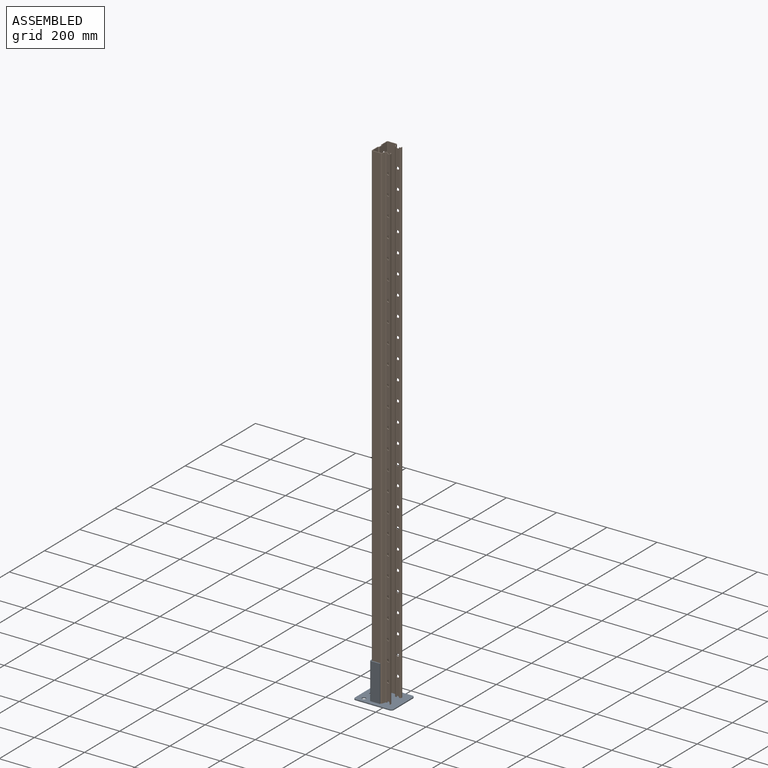
[diagram: assembled view]
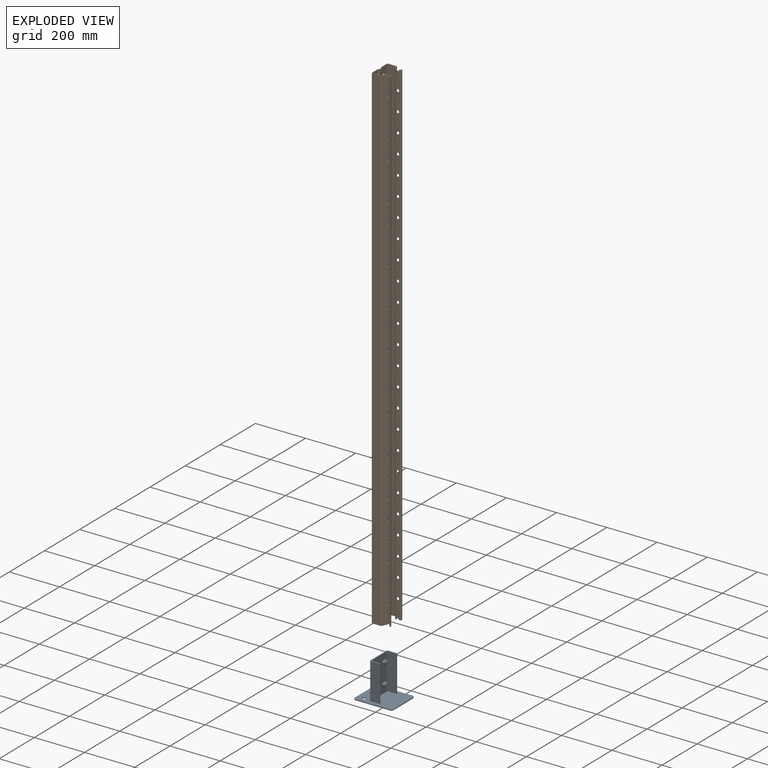
[diagram: exploded view]
GUIDED TOUR — MATED ASSEMBLY WITH SUBASSEMBLIES (Onshape document 2a5d881f6d98ae040764b046, AutoMate assembly 2a5d881f6d98ae040764b046_ed4b050bca129a478b0a3f3c_4f084a7fbbb51c69a40d41c6_default)

This assembly has 10 component occurrences arranged in 2 top-level units: 1 individual components plus 1 subassembly (S0). The tour has two levels: first the top level, where each subassembly is treated as one rigid unit; then each subassembly is toured internally in its own section (nesting deeper than one subassembly level is flattened into its subassembly's section).

Components are labeled P0..P9 across the whole record; subassembly units are labeled S0..S0. A mate is a constraint between two units; its type names the relative motion it leaves free:
  FASTENED — locks the two components together rigidly (no relative motion),
  REVOLUTE — leaves rotation about the listed axis free (a hinge).
Axis/direction vectors are unit vectors and 'through' points are millimeter coordinates, both in the assembly's world frame.

TOP-LEVEL MATES (between units; each subassembly's internal mates are listed in its own section)
  1. FASTENED "Fastened 1": P1 <-> S0, direction (0.000, 0.000, -1.000) through (584.40, -951.72, -2016.73) mm

TOP-LEVEL ASSEMBLY ORDER
  1. S0 — the base component [order verified]
  2. P1 [order verified]
Order-tag legend:
  [order verified] — this step's position reverses a verified removal order: the component was checked to insert without passing through the ones already placed.

Of the 10 component occurrences, 4 carry the full construction recipe — the FeatureScript program that regenerates the part's solid from scratch; the rest are supplied as boundary geometry only. Each toured unit is shown spotlighted twice — assembled, then exploded with a leader line back to its socket (green = recipe-attached component, orange = geometry-only, blue = subassembly unit; the rest desaturated gray).
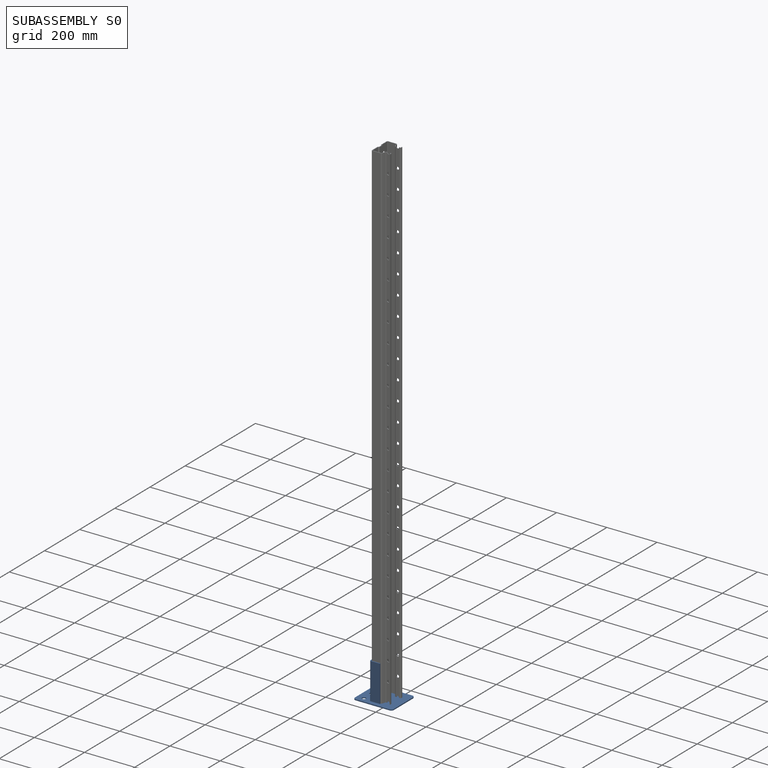
[diagram: subassembly S0 — assembled]
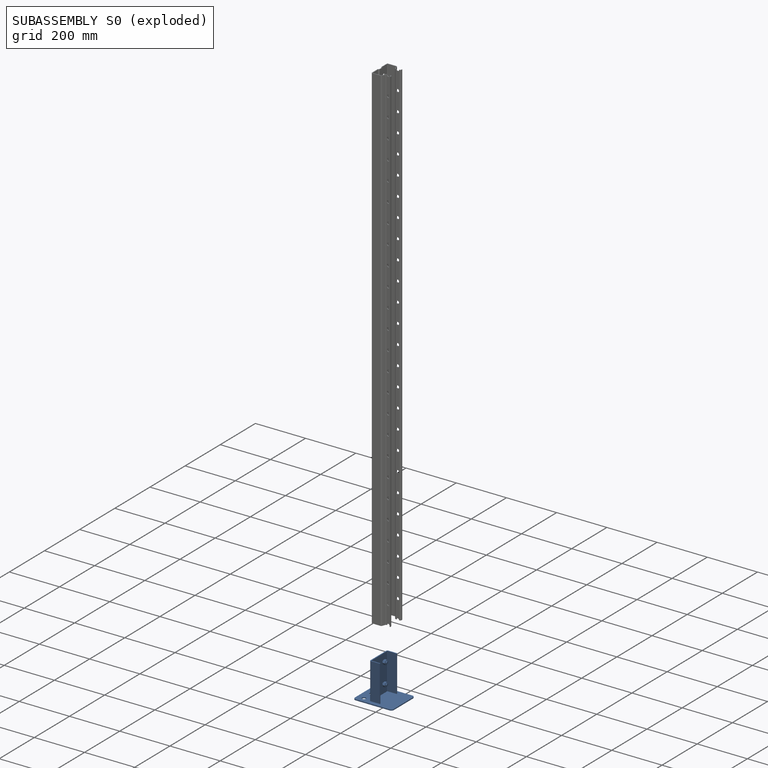
[diagram: subassembly S0 — exploded]
SUBASSEMBLY S0 — 9 components (P0, P2, P3, P4, P5, P6, P7, P8, P9), of which 4 recipe-attached; toured below.
Held by: FASTENED mate "Fastened 1" to P1.
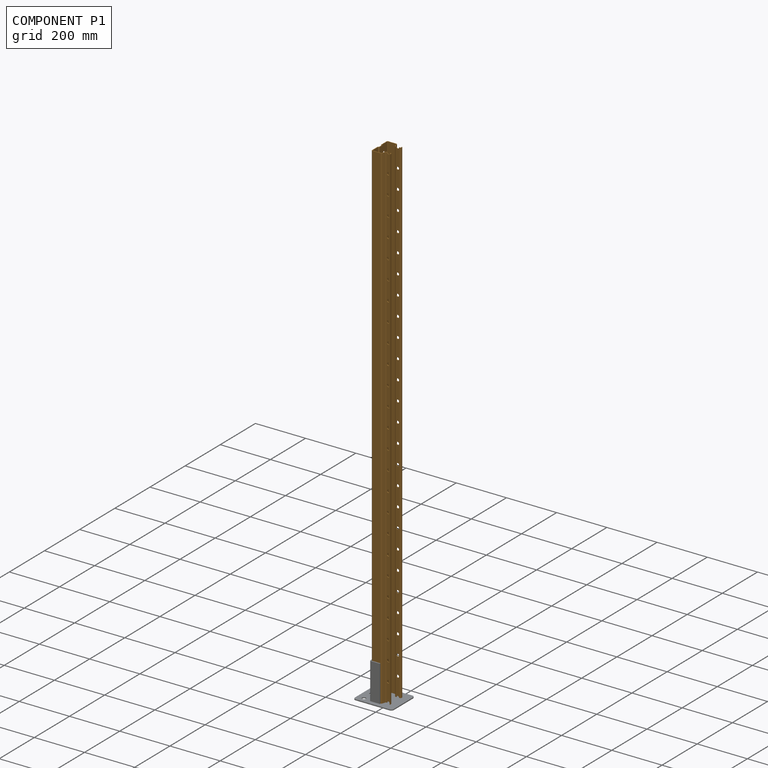
[diagram: component P1 — assembled]
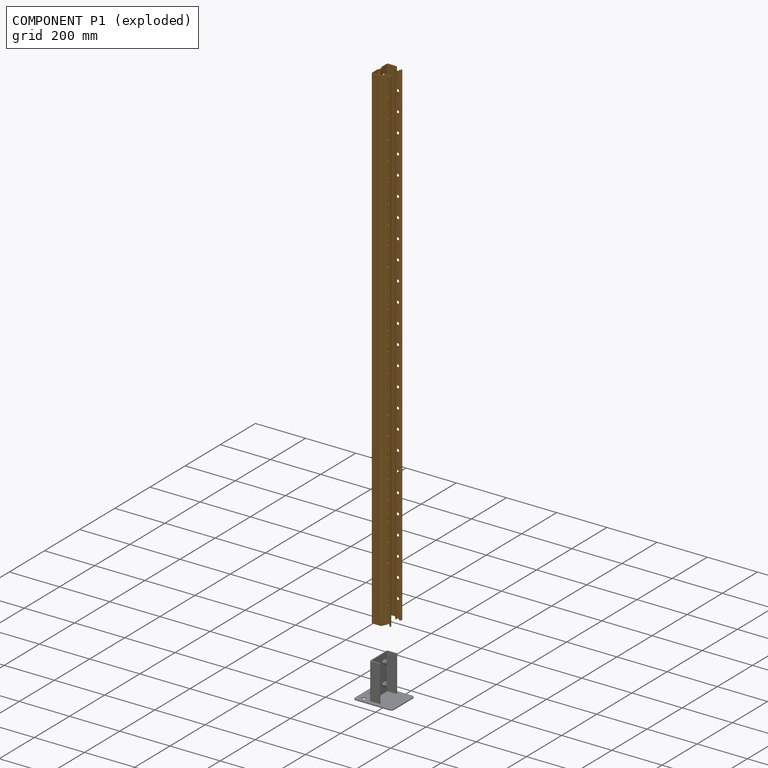
[diagram: component P1 — exploded]
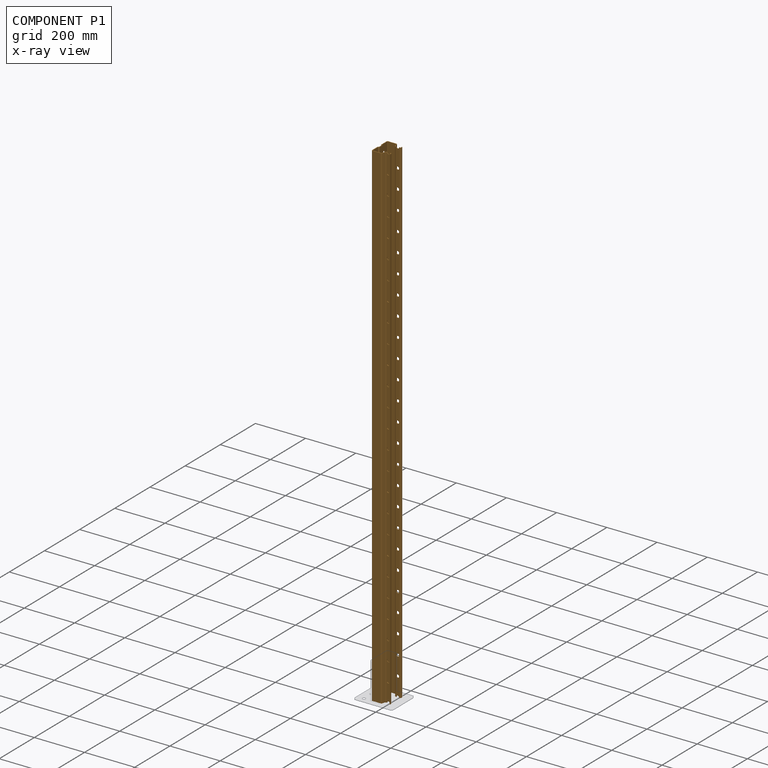
[diagram: component P1 — x-ray view]
COMPONENT P1 — geometry summary (no construction recipe available for this part):
  bounding box: 1981.2 x 90.0 x 67.3 mm
  B-rep topology: 1 solid, 832 faces, 4980 edges
  volume: 1115785 mm^3 (9% of its bounding box)
  symmetry: 2-fold rotationally symmetric about the z axis; mirror-symmetric across its x mid-plane, y mid-plane
Held by: FASTENED mate "Fastened 1" to P0.
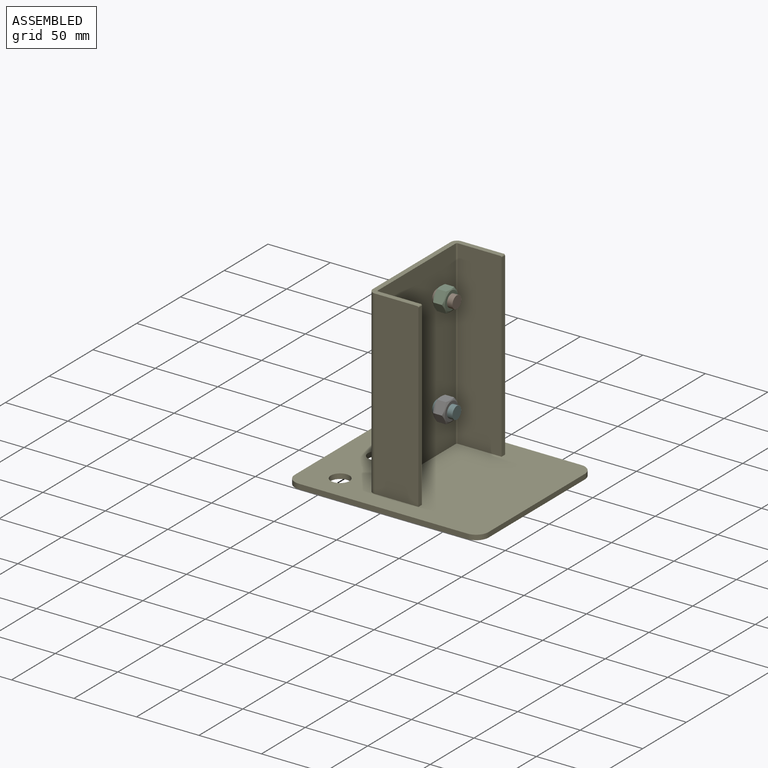
[diagram: subassembly S0 — assembled view]
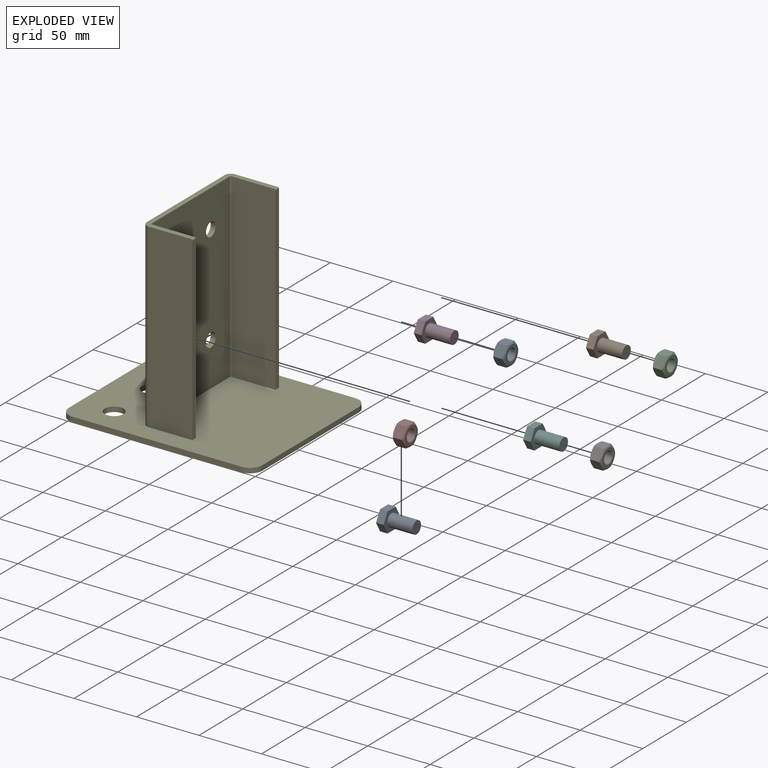
[diagram: subassembly S0 — exploded view]
SUBASSEMBLY S0 TOUR — 9 components, shown here in isolation at its own camera.

INTERNAL MATES
  1. REVOLUTE "Revolute 1": P7 <-> P6, axis (-1.000, 0.000, 0.000) through (582.70, -928.72, -1981.73) mm
  2. REVOLUTE "Revolute 1": P3 <-> P2, axis (-1.000, 0.000, 0.000) through (582.70, -928.72, -1901.73) mm
  3. REVOLUTE "Revolute 1": P9 <-> P5, axis (1.000, 0.000, 0.000) through (576.40, -974.72, -1981.73) mm
  4. REVOLUTE "Revolute 1": P8 <-> P9, axis (-1.000, 0.000, 0.000) through (582.70, -974.72, -1981.73) mm
  5. REVOLUTE "Revolute 1": P0 <-> P4, axis (-1.000, 0.000, 0.000) through (582.70, -974.72, -1901.73) mm

ASSEMBLY ORDER (within the subassembly)
  1. P8 — the base component [order verified]
  2. P7 [order verified]
  3. P5 [order verified]
  4. P9 [order verified]
  5. P6 [order verified]
  6. P3 [order verified]
  7. P0 [order verified]
  8. P4 [order verified]
  9. P2 [order verified]
Order-tag legend:
  [order verified] — this step's position reverses a verified removal order: the component was checked to insert without passing through the ones already placed.
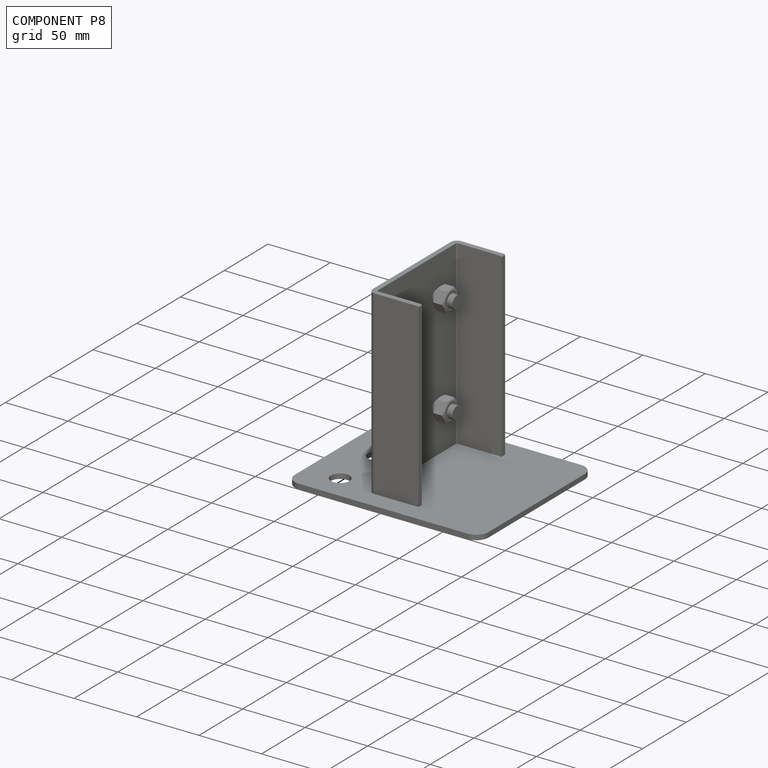
[diagram: component P8 — assembled]
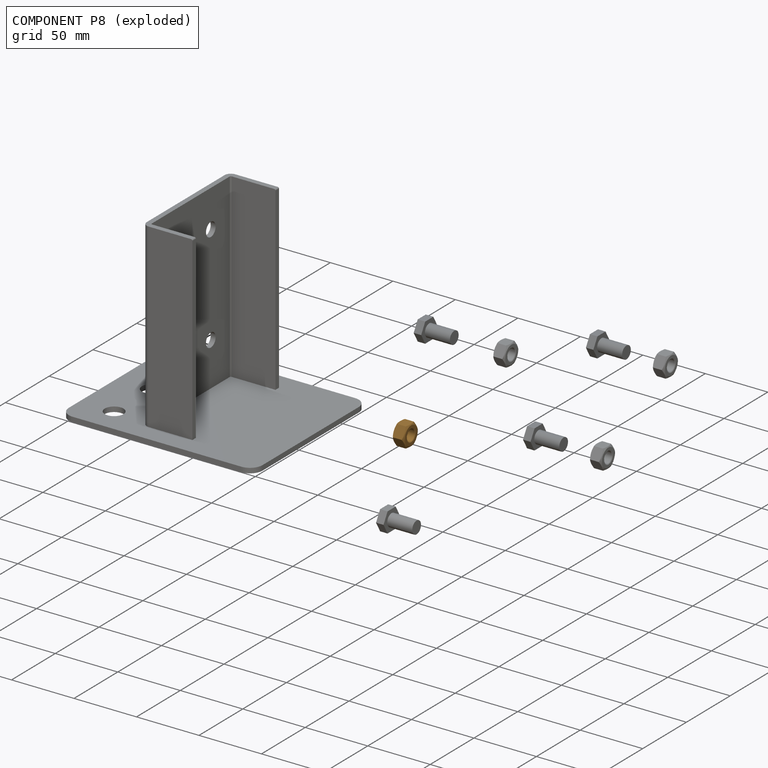
[diagram: component P8 — exploded]
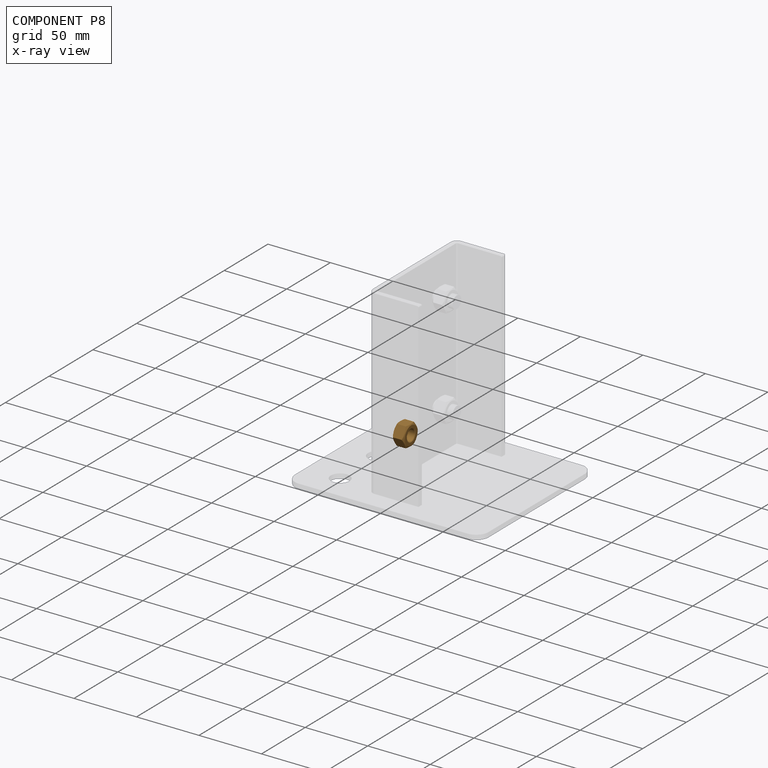
[diagram: component P8 — x-ray view]
COMPONENT P8 — geometry summary (no construction recipe available for this part):
  bounding box: 19.2 x 19.2 x 10.1 mm
  B-rep topology: 1 solid, 13 faces, 62 edges
  volume: 1450 mm^3 (39% of its bounding box)
  symmetry: 2-fold rotationally symmetric about the x axis; 6-fold rotationally symmetric about the y axis; 2-fold rotationally symmetric about the z axis; mirror-symmetric across its x mid-plane, y mid-plane, z mid-plane
Held by: REVOLUTE mate "Revolute 1" to P9.
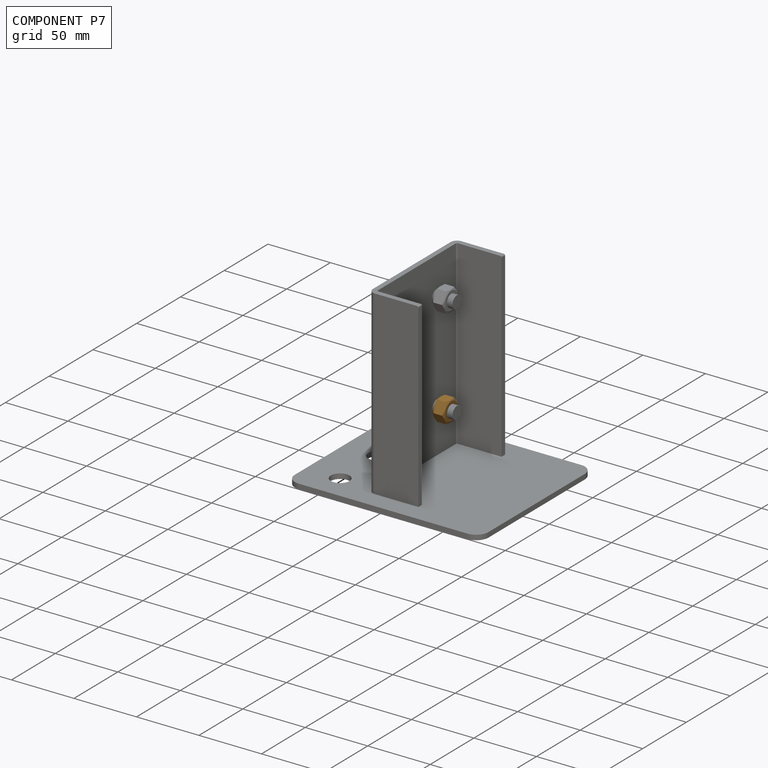
[diagram: component P7 — assembled]
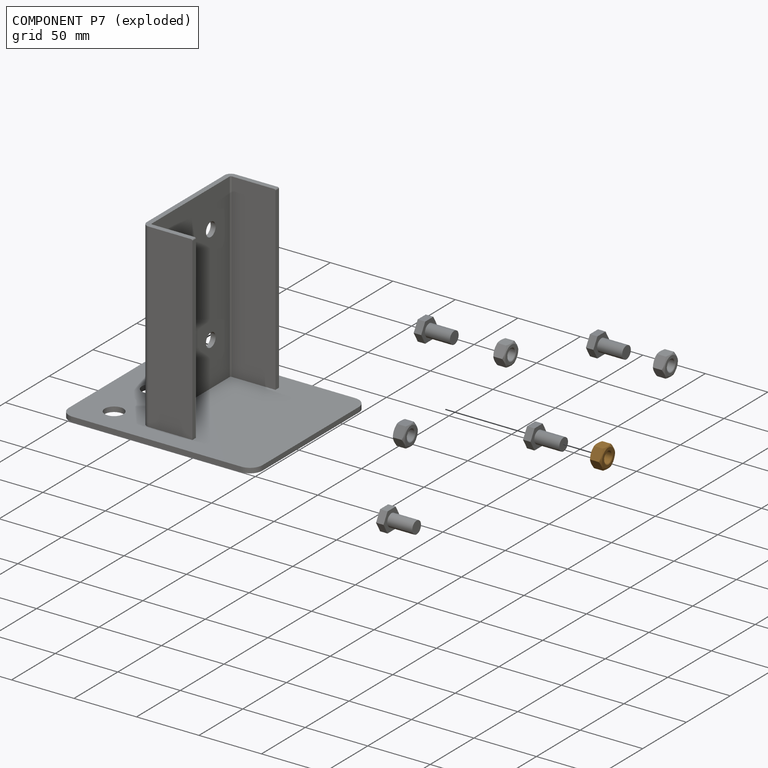
[diagram: component P7 — exploded]
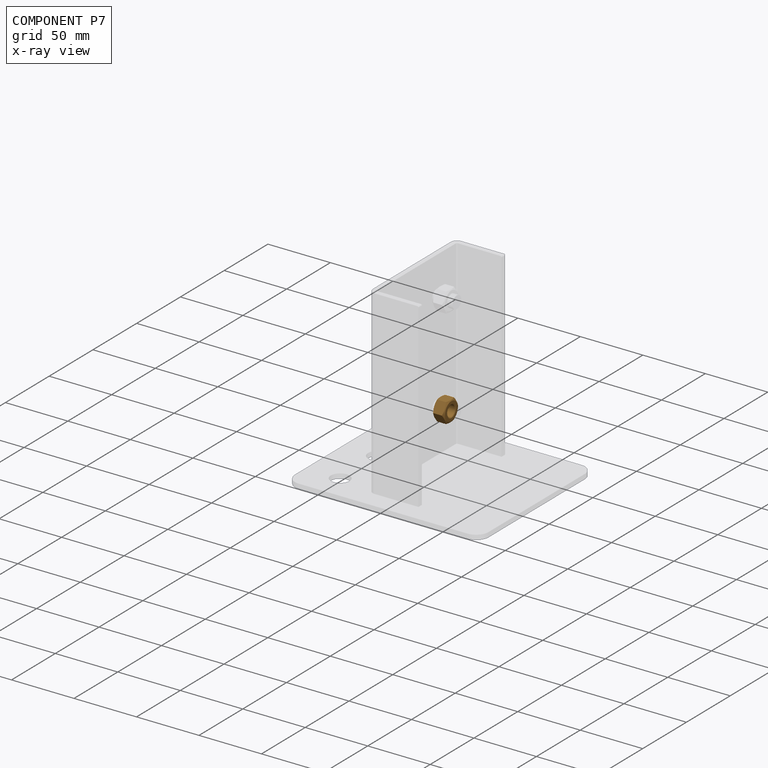
[diagram: component P7 — x-ray view]
COMPONENT P7 — geometry summary (no construction recipe available for this part):
  bounding box: 19.2 x 19.2 x 10.1 mm
  B-rep topology: 1 solid, 13 faces, 62 edges
  volume: 1450 mm^3 (39% of its bounding box)
  symmetry: 2-fold rotationally symmetric about the x axis; 6-fold rotationally symmetric about the y axis; 2-fold rotationally symmetric about the z axis; mirror-symmetric across its x mid-plane, y mid-plane, z mid-plane
Held by: REVOLUTE mate "Revolute 1" to P6.
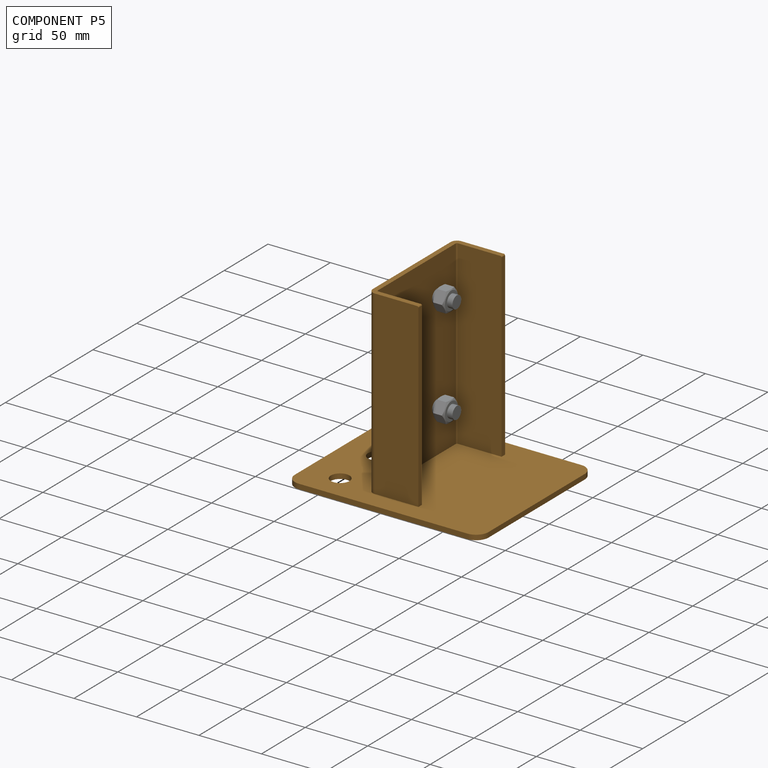
[diagram: component P5 — assembled]
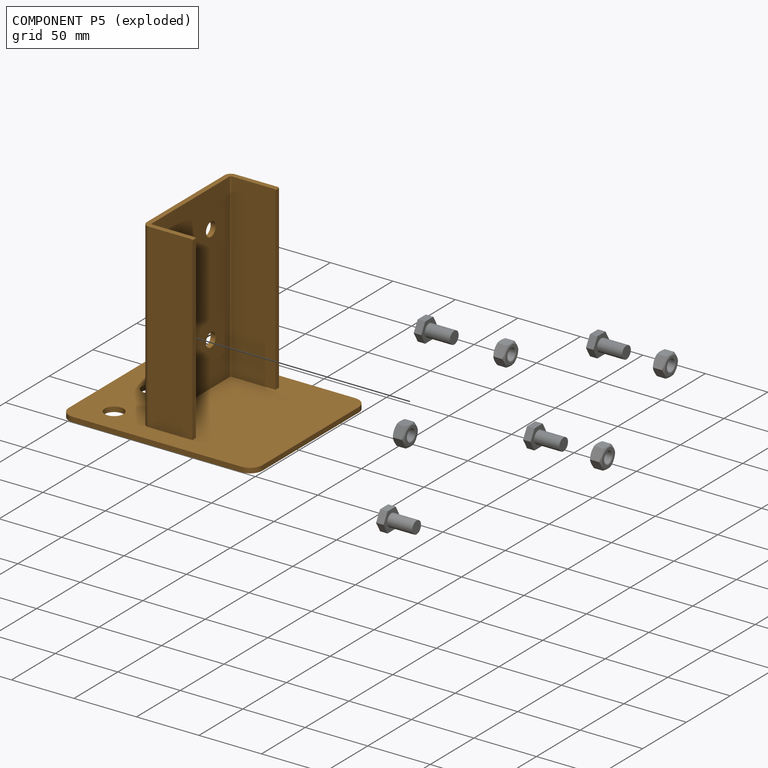
[diagram: component P5 — exploded]
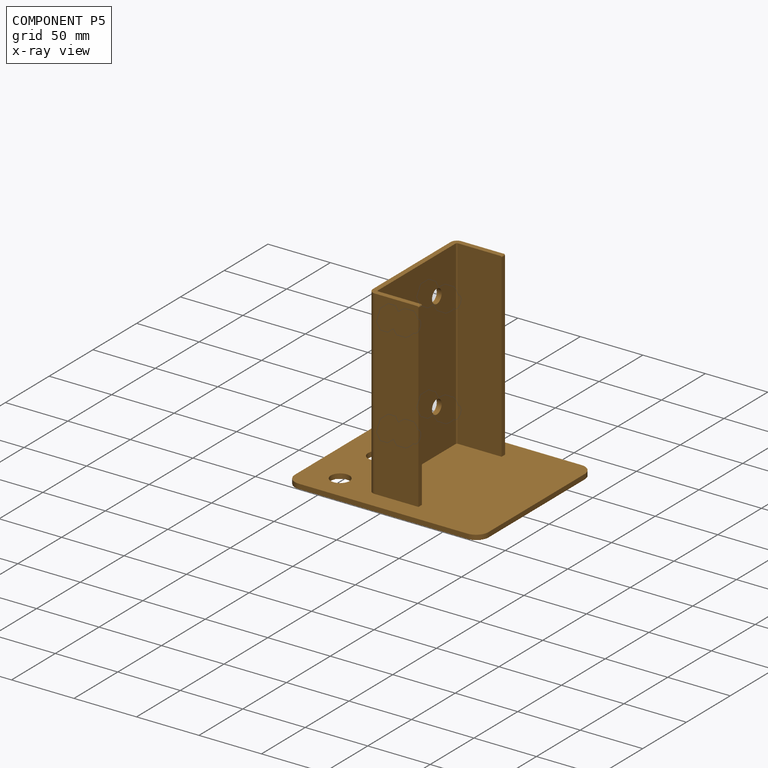
[diagram: component P5 — x-ray view]
COMPONENT P5 — geometry summary (no construction recipe available for this part):
  bounding box: 155.0 x 149.0 x 130.0 mm
  B-rep topology: 1 solid, 32 faces, 180 edges
  volume: 174300 mm^3 (6% of its bounding box)
  symmetry: mirror-symmetric across its y mid-plane
Held by: REVOLUTE mate "Revolute 1" to P9.
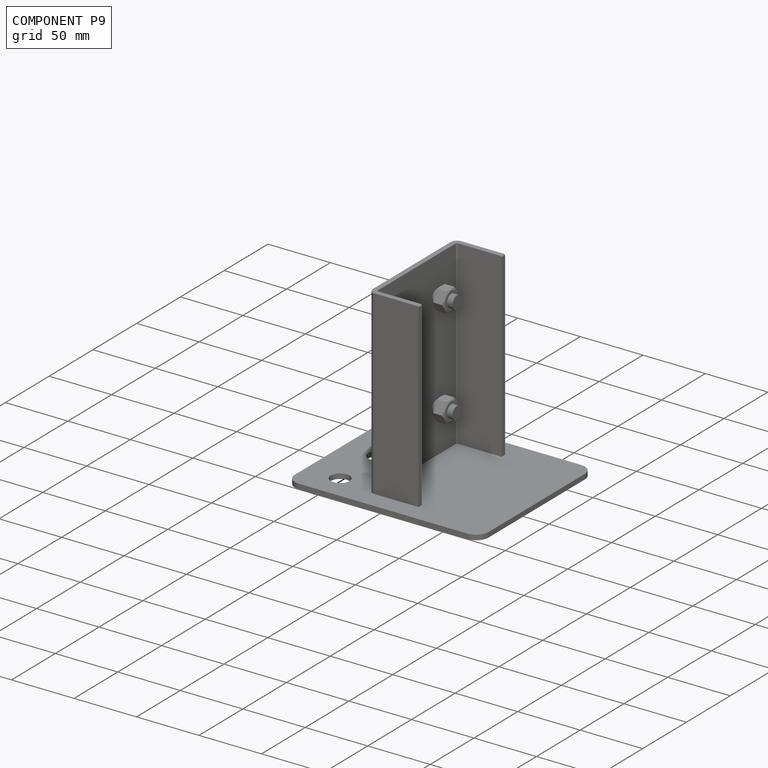
[diagram: component P9 — assembled]
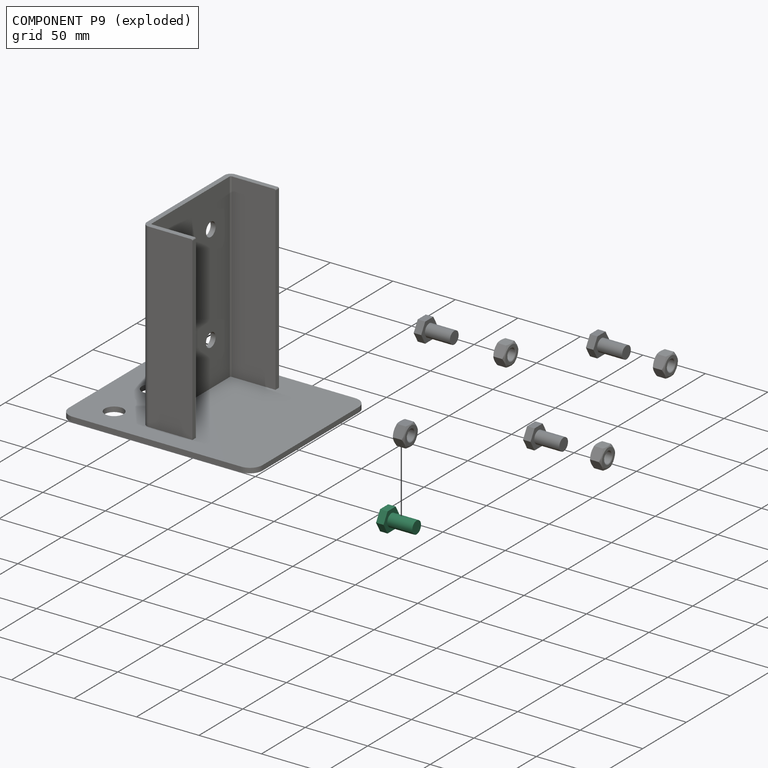
[diagram: component P9 — exploded]
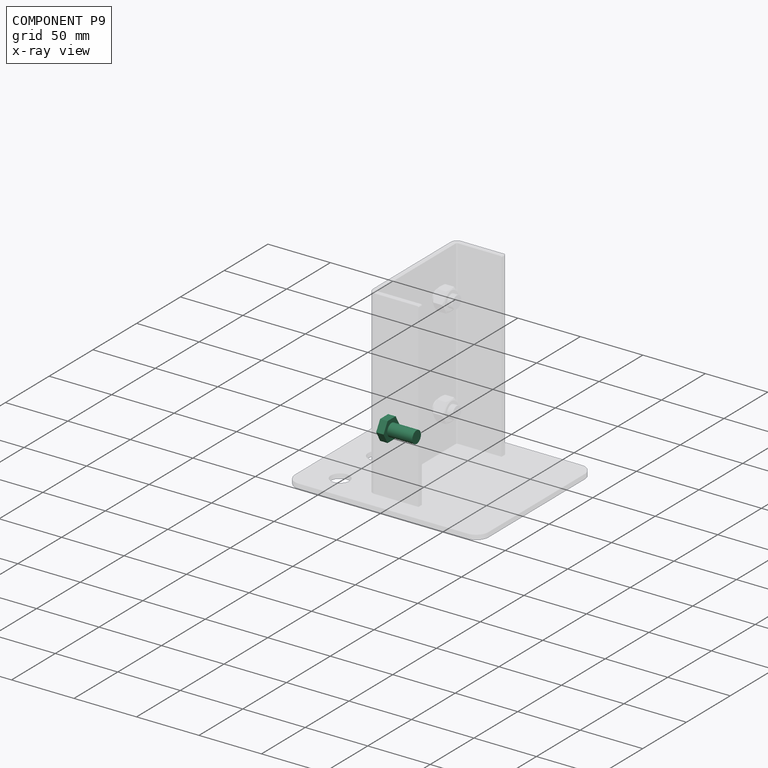
[diagram: component P9 — x-ray view]
COMPONENT P9 — same part as P2 (CADFS 00923385); its construction recipe is shown at P2.
Held by: REVOLUTE mate "Revolute 1" to P5; REVOLUTE mate "Revolute 1" to P8.
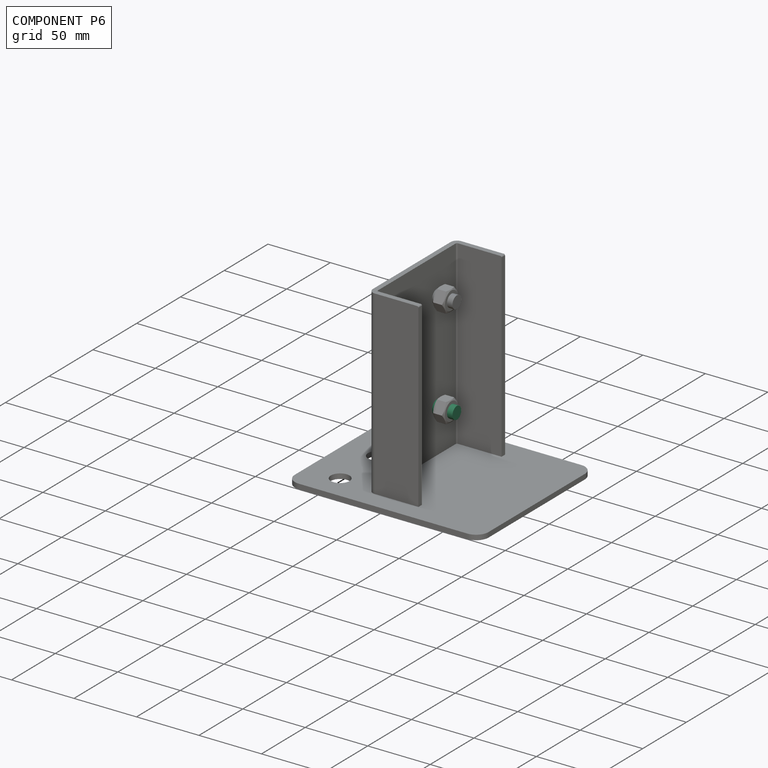
[diagram: component P6 — assembled]
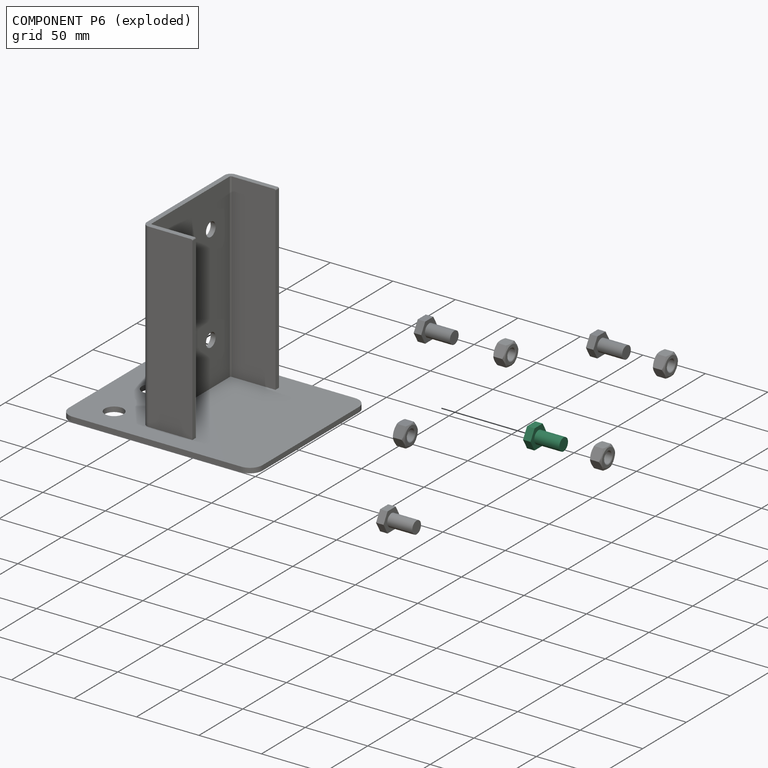
[diagram: component P6 — exploded]
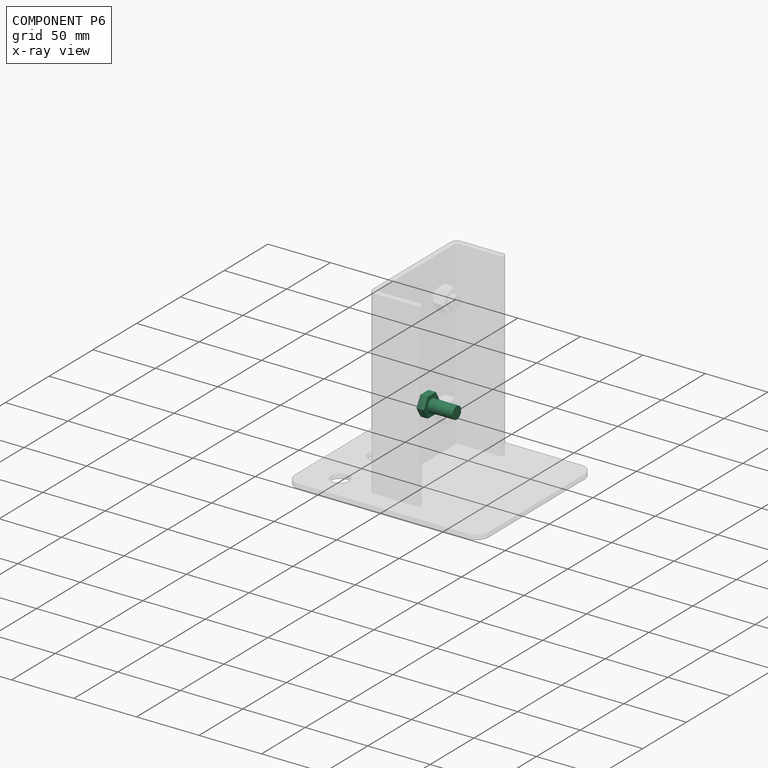
[diagram: component P6 — x-ray view]
COMPONENT P6 — same part as P2 (CADFS 00923385); its construction recipe is shown at P2.
Held by: REVOLUTE mate "Revolute 1" to P7.
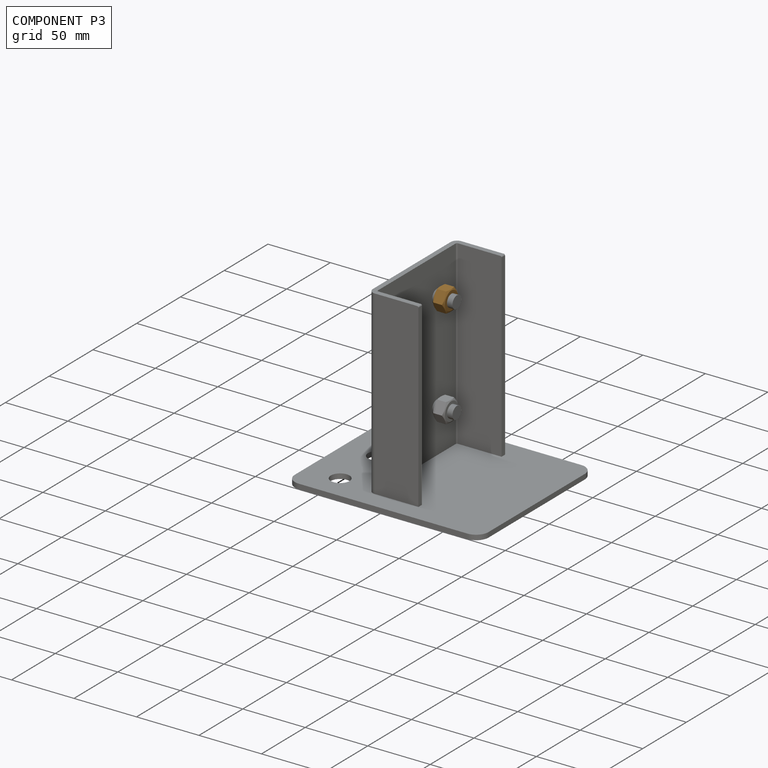
[diagram: component P3 — assembled]
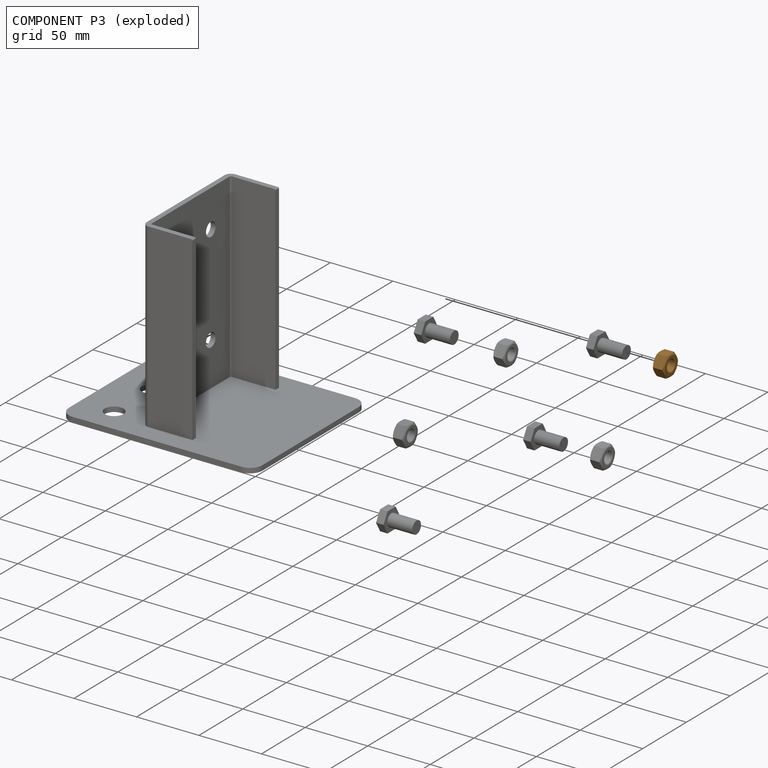
[diagram: component P3 — exploded]
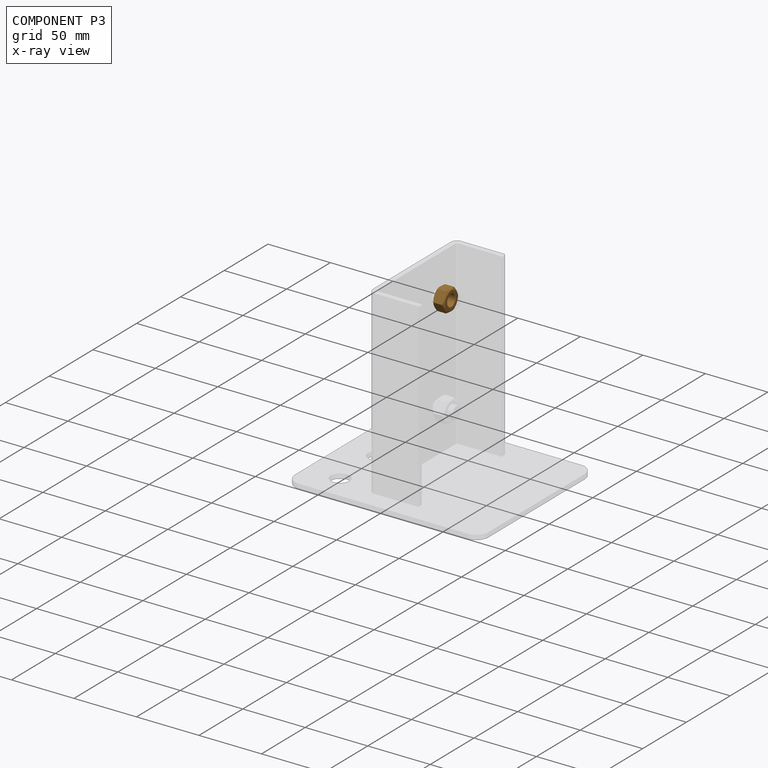
[diagram: component P3 — x-ray view]
COMPONENT P3 — geometry summary (no construction recipe available for this part):
  bounding box: 19.2 x 19.2 x 10.1 mm
  B-rep topology: 1 solid, 13 faces, 62 edges
  volume: 1450 mm^3 (39% of its bounding box)
  symmetry: 2-fold rotationally symmetric about the x axis; 6-fold rotationally symmetric about the y axis; 2-fold rotationally symmetric about the z axis; mirror-symmetric across its x mid-plane, y mid-plane, z mid-plane
Held by: REVOLUTE mate "Revolute 1" to P2.
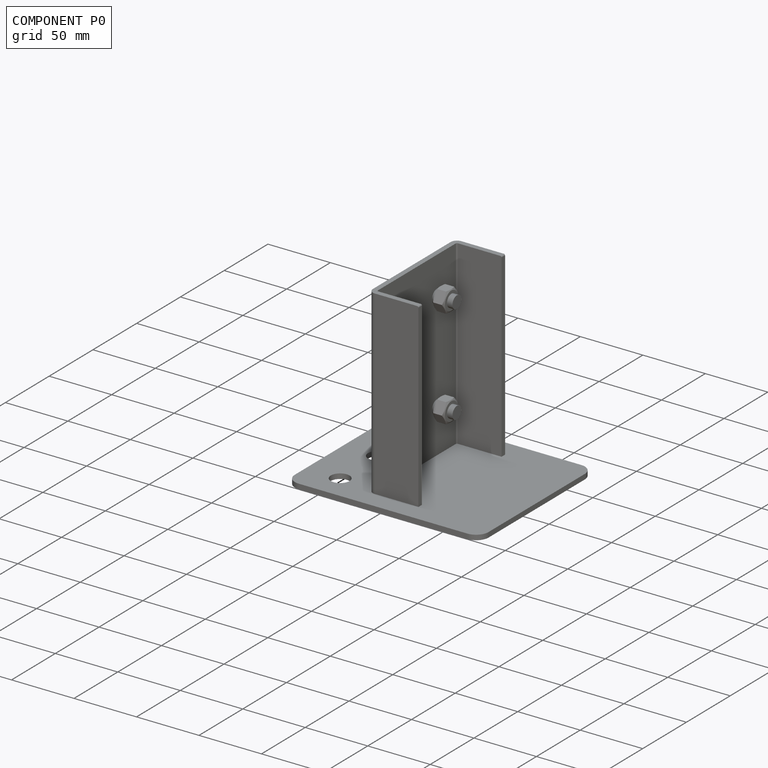
[diagram: component P0 — assembled]
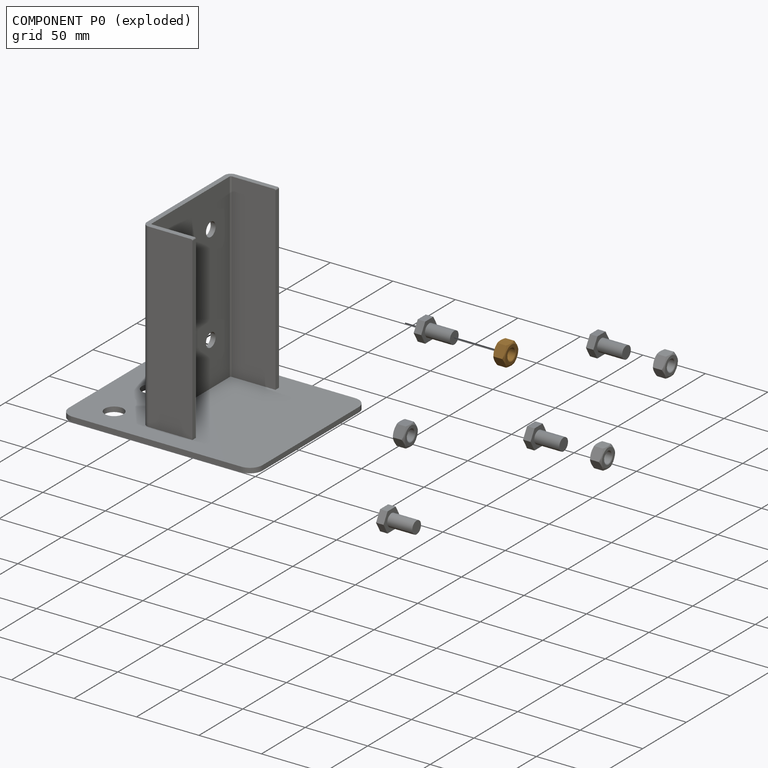
[diagram: component P0 — exploded]
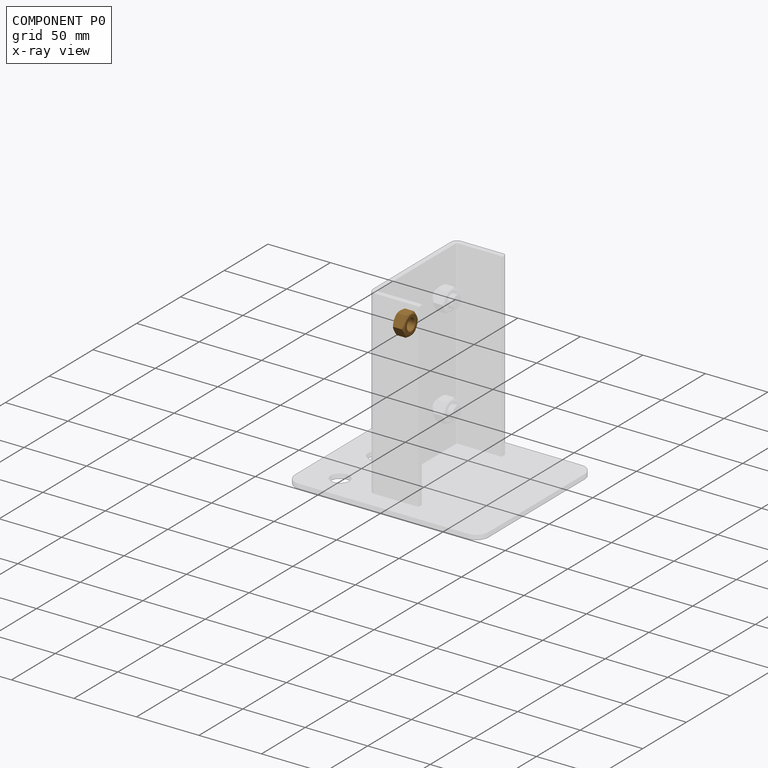
[diagram: component P0 — x-ray view]
COMPONENT P0 — geometry summary (no construction recipe available for this part):
  bounding box: 19.2 x 19.2 x 10.1 mm
  B-rep topology: 1 solid, 13 faces, 62 edges
  volume: 1450 mm^3 (39% of its bounding box)
  symmetry: 2-fold rotationally symmetric about the x axis; 6-fold rotationally symmetric about the y axis; 2-fold rotationally symmetric about the z axis; mirror-symmetric across its x mid-plane, y mid-plane, z mid-plane
Held by: REVOLUTE mate "Revolute 1" to P4.
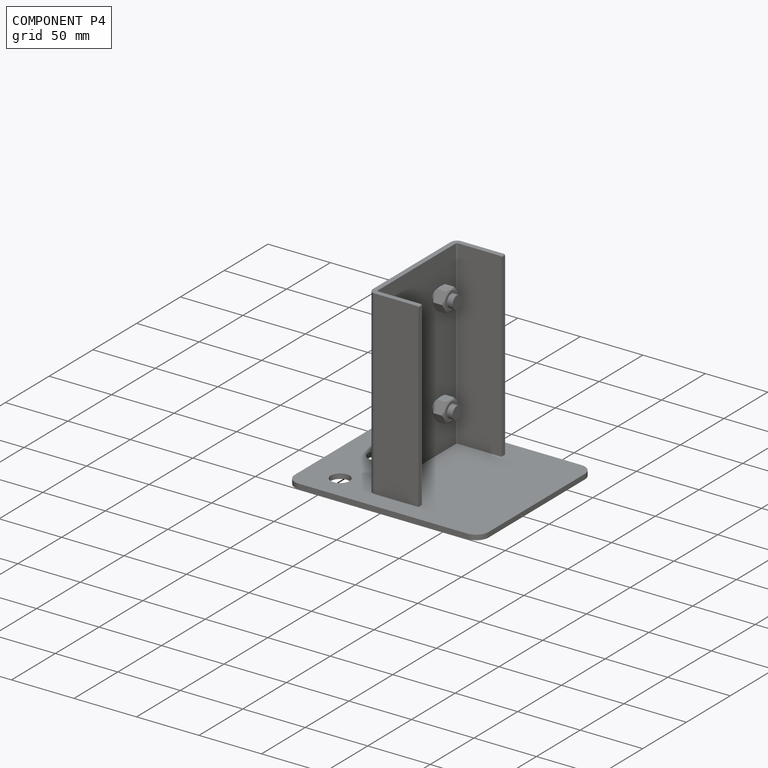
[diagram: component P4 — assembled]
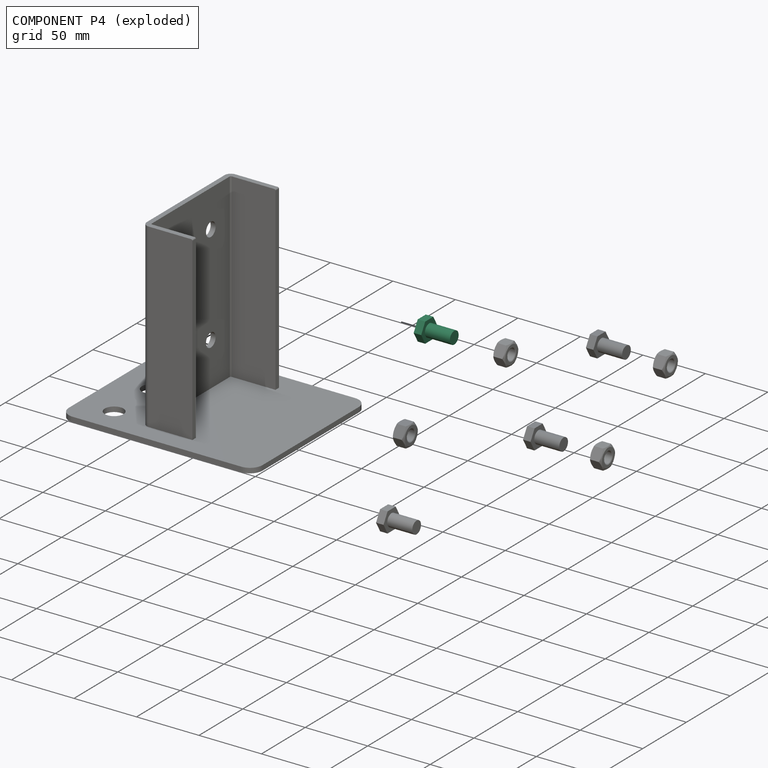
[diagram: component P4 — exploded]
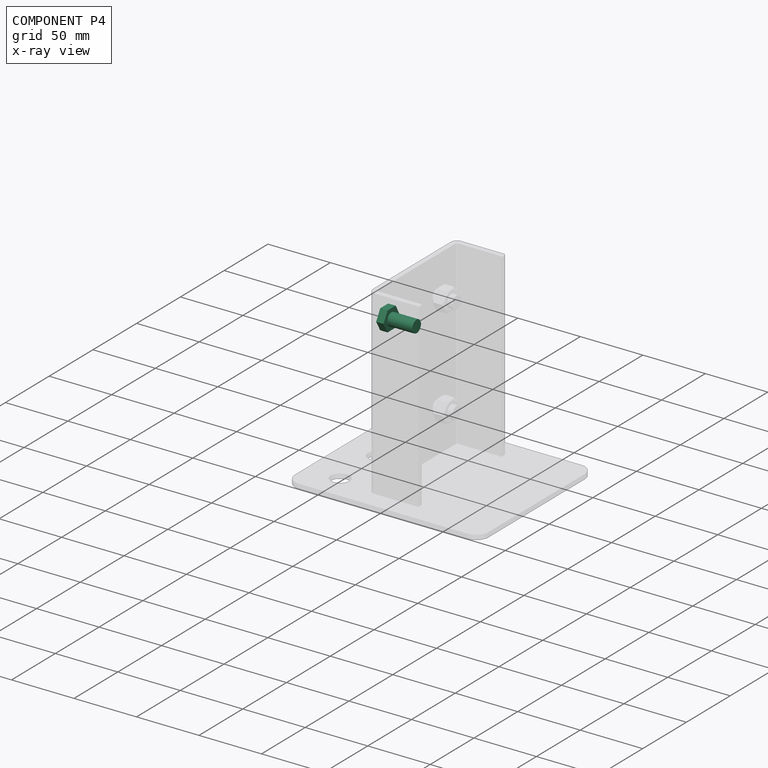
[diagram: component P4 — x-ray view]
COMPONENT P4 — same part as P2 (CADFS 00923385); its construction recipe is shown at P2.
Held by: REVOLUTE mate "Revolute 1" to P0.
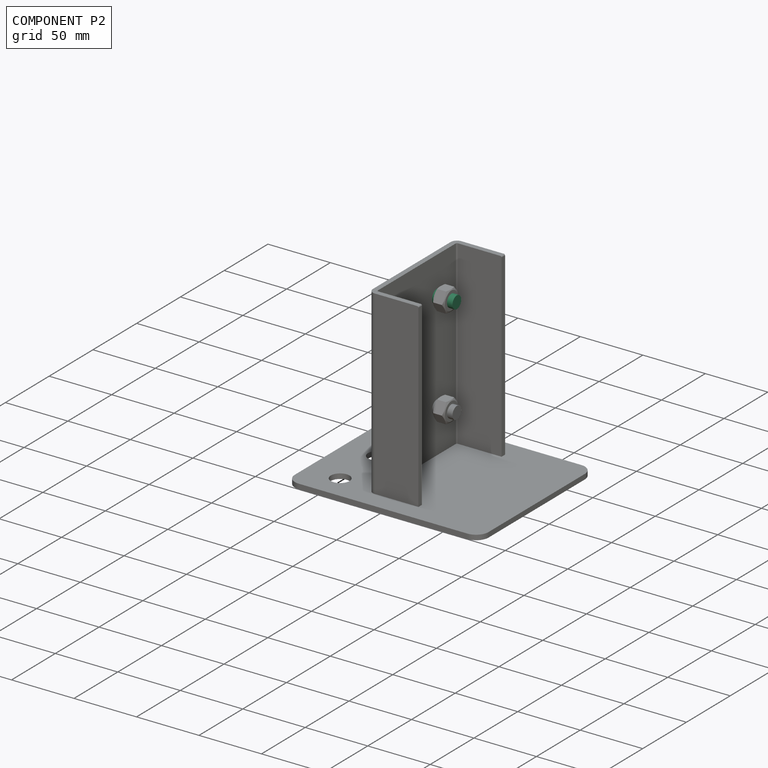
[diagram: component P2 — assembled]
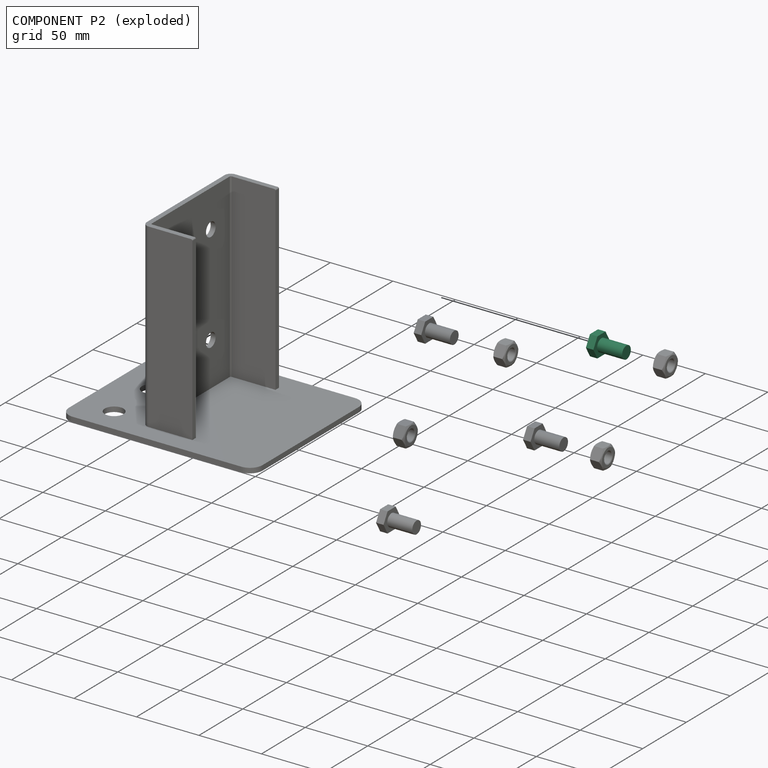
[diagram: component P2 — exploded]
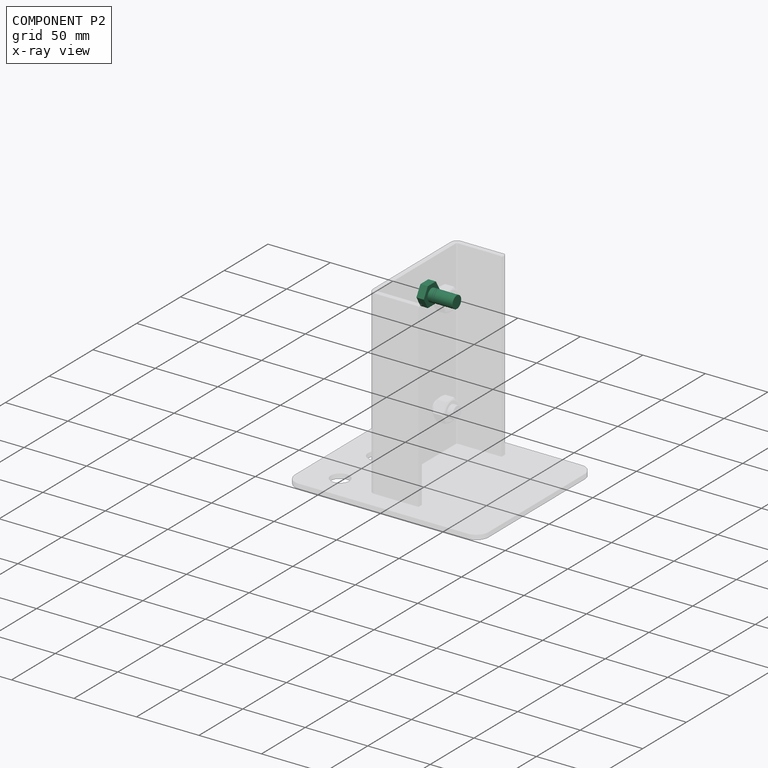
[diagram: component P2 — x-ray view]
COMPONENT P2 — recipe-attached (CADFS 00923385, mesh-verified: the recipe's output STEP matches this component's geometry to below the mesh-comparison resolution (tessellation chordal tolerance ~0.0535 mm)).
Held by: REVOLUTE mate "Revolute 1" to P3.
Construction recipe (FeatureScript — the CAD program that rebuilds this solid; sketch coordinates are in the units given by the * unit suffixes, e.g. mm):

FeatureScript 2066;
import(path : "onshape/std/geometry.fs", version : "2066.0");
import(path : "onshape/std/common.fs", version : "2066.0");
const mm = millimeter;
const VERTEX = EntityType.VERTEX;
const EDGE = EntityType.EDGE;
const FACE = EntityType.FACE;
const BODY = EntityType.BODY;
function v(x, y){return vector(x, y);}
function OD(order){return orderDisambiguation(order);}
function OSD(set){return originalSetDisambiguation(set);}
function TD(topology){return topologyDisambiguation(topology);}
function TDD(query){return trueDependencyDisambiguation(query);}
function sQuery(a, b, c) {return sketchEntityQuery(a, b, c);}

annotation { "Feature Type Name" : "Feature", "Feature Type Description" : "" }
export const myFeature = defineFeature(function(context is Context, id is Id, definition is map)
    precondition{}
    {
        {
            var Q0;
            Q0=qCreatedBy(makeId("Front.planeOp"),FACE);
            var sketch = newSketch(context, id + "F0", { "sketchPlane" : qUnion([Q0])});
            skCircle(sketch, "E0.cCircle", {"center": v(-57.85, 58.03) * mm, "radius": 8 * mm, "construction": true});
            skLineSegment(sketch, "E0.0", {"start": v(-62.47, 66.03) * mm, "end": v(-53.24, 66.03) * mm});
            skLineSegment(sketch, "E0.1", {"start": v(-53.24, 66.03) * mm, "end": v(-48.62, 58.03) * mm});
            skLineSegment(sketch, "E0.2", {"start": v(-48.62, 58.03) * mm, "end": v(-53.24, 50.03) * mm});
            skLineSegment(sketch, "E0.3", {"start": v(-53.24, 50.03) * mm, "end": v(-62.47, 50.03) * mm});
            skLineSegment(sketch, "E0.4", {"start": v(-62.47, 50.03) * mm, "end": v(-67.1, 58.03) * mm});
            skLineSegment(sketch, "E0.5", {"start": v(-67.1, 58.03) * mm, "end": v(-62.47, 66.03) * mm});
            skPoint(sketch, "E0.0.midPoint", {"position": v(-57.85, 66.03) * mm});
            skSolve(sketch);
        }
        {
            var Q0;
            Q0 = qSketchRegion(id + "F0", true);
            extrude(context, id + "F1", {"entities" : qUnion([Q0]), "depth" : 6 * mm, "offsetDistance" : 25 * mm});
        }
        {
            var Q0;
            Q0=makeQuery(id+"F1.opExtrude","CAP_FACE",FACE,{"disambiguationData":[OSD([sQuery(id+"F0.wireOp",EDGE,"E0.0"),sQuery(id+"F0.wireOp",EDGE,"E0.1"),sQuery(id+"F0.wireOp",EDGE,"E0.2"),sQuery(id+"F0.wireOp",EDGE,"E0.3"),sQuery(id+"F0.wireOp",EDGE,"E0.4"),sQuery(id+"F0.wireOp",EDGE,"E0.5")])],"isStart":true});
            var sketch = newSketch(context, id + "F2", { "sketchPlane" : qUnion([Q0])});
            skCircle(sketch, "E1", {"center": v(57.85, 58.03) * mm, "radius": 5 * mm});
            skPoint(sketch, "E1.centerSnap0", {"position": v(57.85, 66.03) * mm});
            skSolve(sketch);
        }
        {
            var Q0;
            Q0=makeQuery(id+"F2.imprint","IMPRINT",FACE,{"disambiguationData":[TD([[makeQuery(id+"F2.imprint","IMPRINT",EDGE,{"derivedFrom":sQuery(id+"F2.wireOp",EDGE,"E1")}),1.0]])]});
            extrude(context, id + "F3", {"entities" : qUnion([Q0]), "operationType" : NewBodyOperationType.ADD, "depth" : 20 * mm, "offsetDistance" : 25 * mm});
        }
    });
PROVENANCE & LICENSES
Assembly (occurrences, transforms, mates, per-part STEP geometry): AutoMate dataset, Zenodo record 7776208, CC0.
Construction recipes: CADFS (HuggingFace VladPyatov/CADFS, CC-BY-4.0, layered over the ABC dataset), FeatureScript reconstruction programs keyed by ABC model id.
Join: ABC meta listings map ABC model id -> Onshape documentId; within a shared document, parts are matched by geometric signature (bounding-box dims + volume at 0.1% relative tolerance, exact B-rep face/solid counts).
Verification: 4 of this assembly's 10 components carry a recipe attachment, and every attachment is mesh-verified: the CADFS STEP and the AutoMate member STEP were compared as meshes in their shared local frame (symmetric sampled-point-to-mesh distance); worst across the 4 attachments: below the mesh-comparison resolution (tessellation chordal tolerance ~0.0535 mm) on a 36 mm part.
Renders: orthographic iso camera (az 35 / el 25); the floor grid conveys scale (grid pitch printed in each image; no ruler). In the exploded view each component is displaced by its stored offset vector: the offsets alone carry the explosion direction (mate normal/axis signs are not orientation cues and do not encode it), and separation distances are assigned per mate-chain, not proportionally to assembly-order depth.
